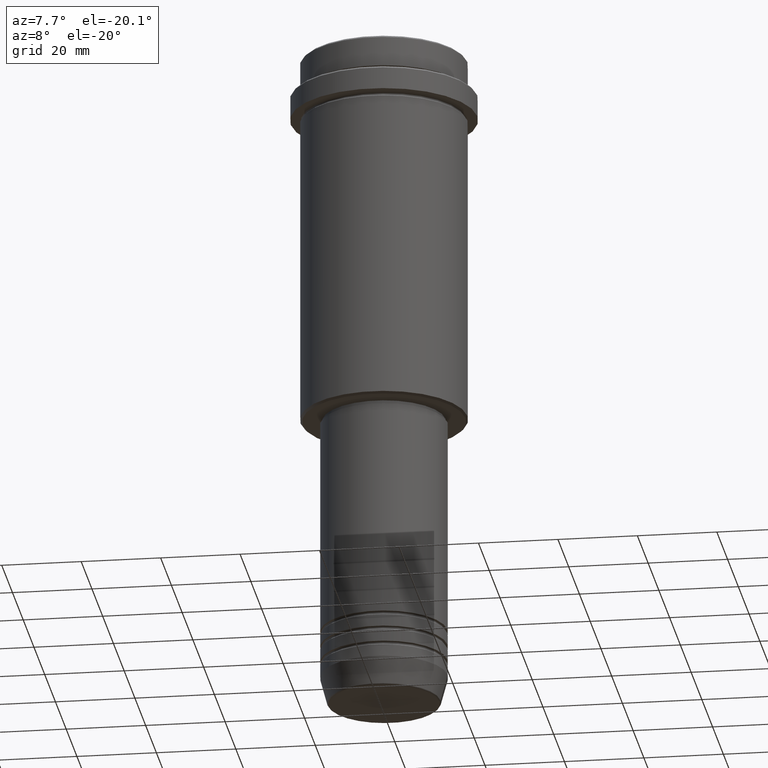
[diagram: clean part render]
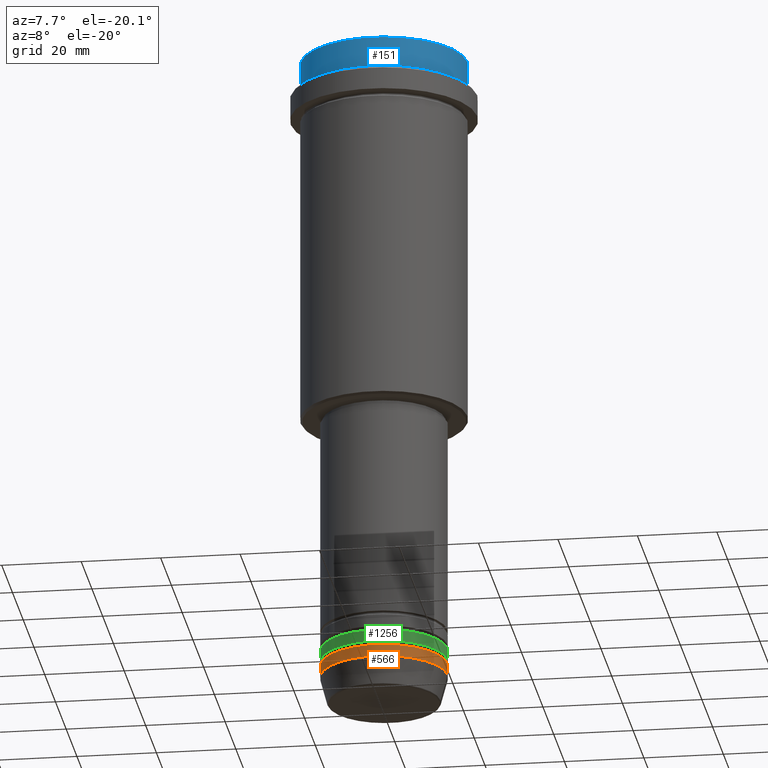
[diagram: same view with three faces highlighted in distinct colors, each labeled with its STEP entity id]
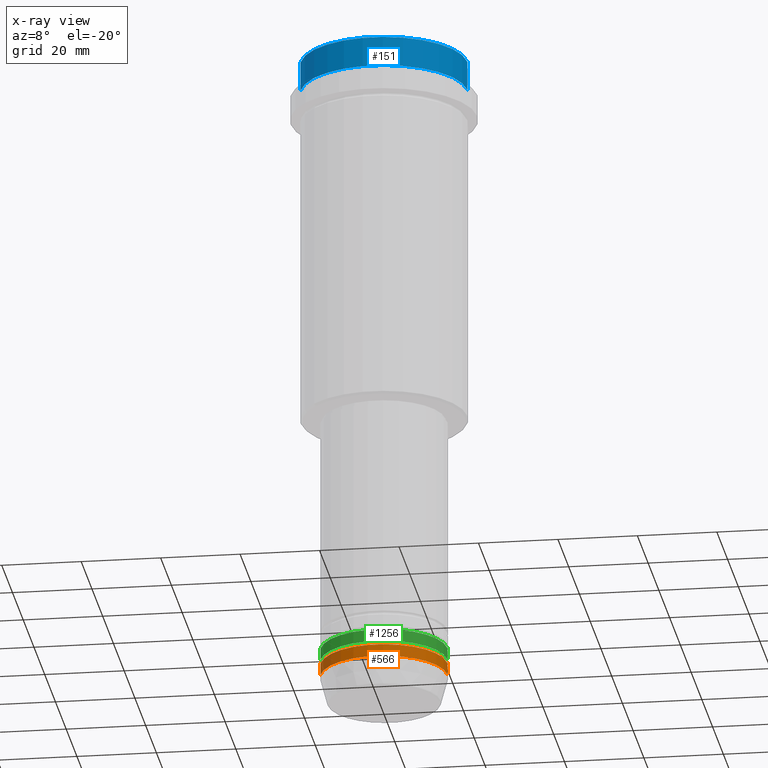
[diagram: x-ray of the same camera — body ghosted, the three highlighted faces saturated]
A machine part, auxiliary view with three faces highlighted in distinct colors.
The next image is the same camera in x-ray (body ghosted, the three faces saturated) — at least one of them is partly hidden behind the body in this view.
Their STEP definitions:

[orange] entity #566 — the highlighted cylindrical surface (partial cylindrical patch) has radius 16 mm, axis along (-0, -0, 1).
#69 = DIRECTION ( 'NONE',  ( -0.000000000000000000, -0.000000000000000000, 1.000000000000000000 ) ) ;
#165 = DIRECTION ( 'NONE',  ( -0.000000000000000000, -0.000000000000000000, 1.000000000000000000 ) ) ;
#177 = DIRECTION ( 'NONE',  ( -0.000000000000000000, -0.000000000000000000, 1.000000000000000000 ) ) ;
#192 = AXIS2_PLACEMENT_3D ( 'NONE', #1067, #877, #1088 ) ;
#254 = CARTESIAN_POINT ( 'NONE',  ( -16.00000000000000000, 1.959434878635765131E-15, -163.0000000000000000 ) ) ;
#382 = CYLINDRICAL_SURFACE ( 'NONE', #683, 16.00000000000000000 ) ;
#412 = CARTESIAN_POINT ( 'NONE',  ( -16.00000000000000000, 1.959434878635765131E-15, 0.000000000000000000 ) ) ;
#437 = ORIENTED_EDGE ( 'NONE', *, *, #1294, .F. ) ;
#445 = VERTEX_POINT ( 'NONE', #994 ) ;
#514 = DIRECTION ( 'NONE',  ( 1.000000000000000000, 0.000000000000000000, 0.000000000000000000 ) ) ;
#566 = ADVANCED_FACE ( 'NONE', ( #727 ), #382, .T. ) ;
#670 = VERTEX_POINT ( 'NONE', #1289 ) ;
#683 = AXIS2_PLACEMENT_3D ( 'NONE', #825, #69, #514 ) ;
#695 = DIRECTION ( 'NONE',  ( 1.000000000000000000, 0.000000000000000000, 0.000000000000000000 ) ) ;
#704 = CARTESIAN_POINT ( 'NONE',  ( -16.00000000000000000, 1.959434878635765131E-15, -160.0000000000000000 ) ) ;
#720 = EDGE_CURVE ( 'NONE', #1089, #670, #1253, .T. ) ;
#727 = FACE_OUTER_BOUND ( 'NONE', #1367, .T. ) ;
#751 = AXIS2_PLACEMENT_3D ( 'NONE', #1242, #1120, #695 ) ;
#824 = VECTOR ( 'NONE', #177, 1000.000000000000000 ) ;
#825 = CARTESIAN_POINT ( 'NONE',  ( 0.000000000000000000, 0.000000000000000000, 0.000000000000000000 ) ) ;
#877 = DIRECTION ( 'NONE',  ( -0.000000000000000000, -0.000000000000000000, 1.000000000000000000 ) ) ;
#927 = CARTESIAN_POINT ( 'NONE',  ( 16.00000000000000000, 0.000000000000000000, 0.000000000000000000 ) ) ;
#953 = EDGE_CURVE ( 'NONE', #670, #445, #1150, .T. ) ;
#974 = VECTOR ( 'NONE', #165, 1000.000000000000000 ) ;
#983 = ORIENTED_EDGE ( 'NONE', *, *, #720, .T. ) ;
#994 = CARTESIAN_POINT ( 'NONE',  ( 16.00000000000000000, 0.000000000000000000, -160.0000000000000000 ) ) ;
#1017 = ORIENTED_EDGE ( 'NONE', *, *, #953, .T. ) ;
#1067 = CARTESIAN_POINT ( 'NONE',  ( 0.000000000000000000, 0.000000000000000000, -163.0000000000000000 ) ) ;
#1088 = DIRECTION ( 'NONE',  ( 1.000000000000000000, 0.000000000000000000, 0.000000000000000000 ) ) ;
#1089 = VERTEX_POINT ( 'NONE', #254 ) ;
#1118 = EDGE_CURVE ( 'NONE', #1151, #445, #1326, .T. ) ;
#1120 = DIRECTION ( 'NONE',  ( -0.000000000000000000, -0.000000000000000000, 1.000000000000000000 ) ) ;
#1150 = LINE ( 'NONE', #927, #974 ) ;
#1151 = VERTEX_POINT ( 'NONE', #704 ) ;
#1197 = ORIENTED_EDGE ( 'NONE', *, *, #1118, .F. ) ;
#1242 = CARTESIAN_POINT ( 'NONE',  ( 0.000000000000000000, 0.000000000000000000, -160.0000000000000000 ) ) ;
#1253 = CIRCLE ( 'NONE', #192, 16.00000000000000000 ) ;
#1289 = CARTESIAN_POINT ( 'NONE',  ( 16.00000000000000000, 0.000000000000000000, -163.0000000000000000 ) ) ;
#1294 = EDGE_CURVE ( 'NONE', #1089, #1151, #1390, .T. ) ;
#1326 = CIRCLE ( 'NONE', #751, 16.00000000000000000 ) ;
#1367 = EDGE_LOOP ( 'NONE', ( #437, #983, #1017, #1197 ) ) ;
#1390 = LINE ( 'NONE', #412, #824 ) ;

[blue] entity #151 — the highlighted cylindrical surface (partial cylindrical patch) has radius 21 mm, axis along (-0, -0, 1).
#123 = CARTESIAN_POINT ( 'NONE',  ( -21.00000000000000000, 2.571758278209441661E-15, 0.000000000000000000 ) ) ;
#142 = CARTESIAN_POINT ( 'NONE',  ( 0.000000000000000000, 0.000000000000000000, -7.999999999999998224 ) ) ;
#151 = ADVANCED_FACE ( 'NONE', ( #513 ), #533, .T. ) ;
#160 = ORIENTED_EDGE ( 'NONE', *, *, #828, .F. ) ;
#171 = ORIENTED_EDGE ( 'NONE', *, *, #497, .T. ) ;
#241 = EDGE_CURVE ( 'NONE', #1048, #1189, #700, .T. ) ;
#298 = CARTESIAN_POINT ( 'NONE',  ( 0.000000000000000000, 0.000000000000000000, 0.000000000000000000 ) ) ;
#303 = DIRECTION ( 'NONE',  ( -0.000000000000000000, -0.000000000000000000, 1.000000000000000000 ) ) ;
#394 = CARTESIAN_POINT ( 'NONE',  ( -21.00000000000000000, 2.571758278209441661E-15, -7.999999999999998224 ) ) ;
#400 = DIRECTION ( 'NONE',  ( 1.000000000000000000, 0.000000000000000000, 0.000000000000000000 ) ) ;
#421 = EDGE_CURVE ( 'NONE', #754, #1048, #1332, .T. ) ;
#450 = DIRECTION ( 'NONE',  ( -0.000000000000000000, -0.000000000000000000, 1.000000000000000000 ) ) ;
#473 = DIRECTION ( 'NONE',  ( -0.000000000000000000, -0.000000000000000000, 1.000000000000000000 ) ) ;
#483 = VECTOR ( 'NONE', #473, 1000.000000000000000 ) ;
#497 = EDGE_CURVE ( 'NONE', #1203, #754, #1318, .T. ) ;
#513 = FACE_OUTER_BOUND ( 'NONE', #1395, .T. ) ;
#533 = CYLINDRICAL_SURFACE ( 'NONE', #1270, 21.00000000000000000 ) ;
#609 = CARTESIAN_POINT ( 'NONE',  ( -21.00000000000000000, 2.571758278209441661E-15, -0.5000000000000108802 ) ) ;
#680 = DIRECTION ( 'NONE',  ( -0.000000000000000000, -0.000000000000000000, 1.000000000000000000 ) ) ;
#700 = CIRCLE ( 'NONE', #1379, 21.00000000000000000 ) ;
#736 = CARTESIAN_POINT ( 'NONE',  ( 0.000000000000000000, 0.000000000000000000, -0.5000000000000108802 ) ) ;
#753 = DIRECTION ( 'NONE',  ( 0.000000000000000000, 0.000000000000000000, -1.000000000000000000 ) ) ;
#754 = VERTEX_POINT ( 'NONE', #1062 ) ;
#828 = EDGE_CURVE ( 'NONE', #1203, #1189, #1319, .T. ) ;
#833 = ORIENTED_EDGE ( 'NONE', *, *, #421, .T. ) ;
#853 = DIRECTION ( 'NONE',  ( 1.000000000000000000, 0.000000000000000000, 0.000000000000000000 ) ) ;
#886 = DIRECTION ( 'NONE',  ( 1.000000000000000000, 0.000000000000000000, 0.000000000000000000 ) ) ;
#950 = VECTOR ( 'NONE', #680, 1000.000000000000000 ) ;
#999 = CARTESIAN_POINT ( 'NONE',  ( 21.00000000000000000, 0.000000000000000000, -0.5000000000000108802 ) ) ;
#1042 = AXIS2_PLACEMENT_3D ( 'NONE', #142, #450, #886 ) ;
#1048 = VERTEX_POINT ( 'NONE', #999 ) ;
#1062 = CARTESIAN_POINT ( 'NONE',  ( 21.00000000000000000, 0.000000000000000000, -7.999999999999998224 ) ) ;
#1075 = ORIENTED_EDGE ( 'NONE', *, *, #241, .T. ) ;
#1091 = CARTESIAN_POINT ( 'NONE',  ( 21.00000000000000000, 0.000000000000000000, 0.000000000000000000 ) ) ;
#1189 = VERTEX_POINT ( 'NONE', #609 ) ;
#1203 = VERTEX_POINT ( 'NONE', #394 ) ;
#1270 = AXIS2_PLACEMENT_3D ( 'NONE', #298, #303, #853 ) ;
#1318 = CIRCLE ( 'NONE', #1042, 21.00000000000000000 ) ;
#1319 = LINE ( 'NONE', #123, #483 ) ;
#1332 = LINE ( 'NONE', #1091, #950 ) ;
#1379 = AXIS2_PLACEMENT_3D ( 'NONE', #736, #753, #400 ) ;
#1395 = EDGE_LOOP ( 'NONE', ( #160, #171, #833, #1075 ) ) ;

[green] entity #1256 — the highlighted cylindrical surface (partial cylindrical patch) has radius 16 mm, axis along (-0, -0, 1).
#32 = EDGE_CURVE ( 'NONE', #436, #643, #374, .T. ) ;
#79 = DIRECTION ( 'NONE',  ( -0.000000000000000000, -0.000000000000000000, 1.000000000000000000 ) ) ;
#106 = ORIENTED_EDGE ( 'NONE', *, *, #794, .F. ) ;
#132 = CARTESIAN_POINT ( 'NONE',  ( 0.000000000000000000, 0.000000000000000000, -155.9999999999999147 ) ) ;
#134 = CARTESIAN_POINT ( 'NONE',  ( -16.00000000000000000, 1.959434878635765131E-15, -158.9999999999999147 ) ) ;
#172 = FACE_OUTER_BOUND ( 'NONE', #1015, .T. ) ;
#251 = VECTOR ( 'NONE', #1237, 1000.000000000000000 ) ;
#271 = AXIS2_PLACEMENT_3D ( 'NONE', #132, #571, #1227 ) ;
#374 = CIRCLE ( 'NONE', #1175, 16.00000000000000000 ) ;
#383 = CIRCLE ( 'NONE', #271, 16.00000000000000000 ) ;
#436 = VERTEX_POINT ( 'NONE', #134 ) ;
#502 = DIRECTION ( 'NONE',  ( -0.000000000000000000, -0.000000000000000000, 1.000000000000000000 ) ) ;
#543 = CARTESIAN_POINT ( 'NONE',  ( -16.00000000000000000, 1.959434878635765131E-15, -155.9999999999999147 ) ) ;
#549 = AXIS2_PLACEMENT_3D ( 'NONE', #1375, #79, #1039 ) ;
#571 = DIRECTION ( 'NONE',  ( -0.000000000000000000, -0.000000000000000000, 1.000000000000000000 ) ) ;
#643 = VERTEX_POINT ( 'NONE', #1072 ) ;
#689 = VERTEX_POINT ( 'NONE', #543 ) ;
#738 = CYLINDRICAL_SURFACE ( 'NONE', #549, 16.00000000000000000 ) ;
#777 = VERTEX_POINT ( 'NONE', #1196 ) ;
#794 = EDGE_CURVE ( 'NONE', #436, #689, #855, .T. ) ;
#855 = LINE ( 'NONE', #863, #934 ) ;
#863 = CARTESIAN_POINT ( 'NONE',  ( -16.00000000000000000, 1.959434878635765131E-15, 0.000000000000000000 ) ) ;
#866 = ORIENTED_EDGE ( 'NONE', *, *, #32, .T. ) ;
#898 = EDGE_CURVE ( 'NONE', #643, #777, #1115, .T. ) ;
#918 = EDGE_CURVE ( 'NONE', #689, #777, #383, .T. ) ;
#934 = VECTOR ( 'NONE', #1122, 1000.000000000000000 ) ;
#1015 = EDGE_LOOP ( 'NONE', ( #106, #866, #1355, #1353 ) ) ;
#1039 = DIRECTION ( 'NONE',  ( 1.000000000000000000, 0.000000000000000000, 0.000000000000000000 ) ) ;
#1072 = CARTESIAN_POINT ( 'NONE',  ( 16.00000000000000000, 0.000000000000000000, -158.9999999999999147 ) ) ;
#1097 = CARTESIAN_POINT ( 'NONE',  ( 16.00000000000000000, 0.000000000000000000, 0.000000000000000000 ) ) ;
#1115 = LINE ( 'NONE', #1097, #251 ) ;
#1122 = DIRECTION ( 'NONE',  ( -0.000000000000000000, -0.000000000000000000, 1.000000000000000000 ) ) ;
#1153 = CARTESIAN_POINT ( 'NONE',  ( 0.000000000000000000, 0.000000000000000000, -158.9999999999999147 ) ) ;
#1175 = AXIS2_PLACEMENT_3D ( 'NONE', #1153, #502, #1377 ) ;
#1196 = CARTESIAN_POINT ( 'NONE',  ( 16.00000000000000000, 0.000000000000000000, -155.9999999999999147 ) ) ;
#1227 = DIRECTION ( 'NONE',  ( 1.000000000000000000, 0.000000000000000000, 0.000000000000000000 ) ) ;
#1237 = DIRECTION ( 'NONE',  ( -0.000000000000000000, -0.000000000000000000, 1.000000000000000000 ) ) ;
#1256 = ADVANCED_FACE ( 'NONE', ( #172 ), #738, .T. ) ;
#1353 = ORIENTED_EDGE ( 'NONE', *, *, #918, .F. ) ;
#1355 = ORIENTED_EDGE ( 'NONE', *, *, #898, .T. ) ;
#1375 = CARTESIAN_POINT ( 'NONE',  ( 0.000000000000000000, 0.000000000000000000, 0.000000000000000000 ) ) ;
#1377 = DIRECTION ( 'NONE',  ( 1.000000000000000000, 0.000000000000000000, 0.000000000000000000 ) ) ;